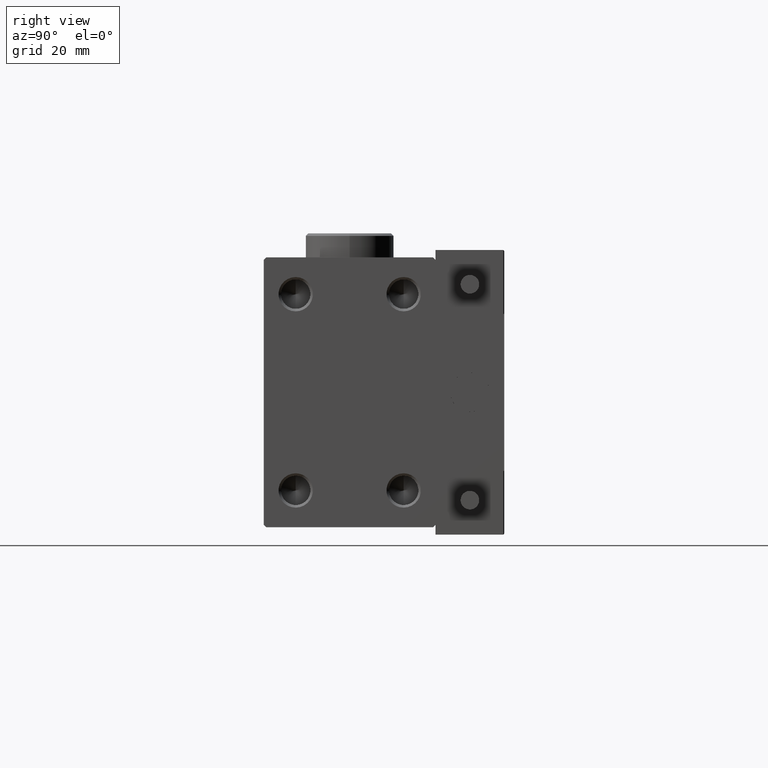
[diagram: clean part render]
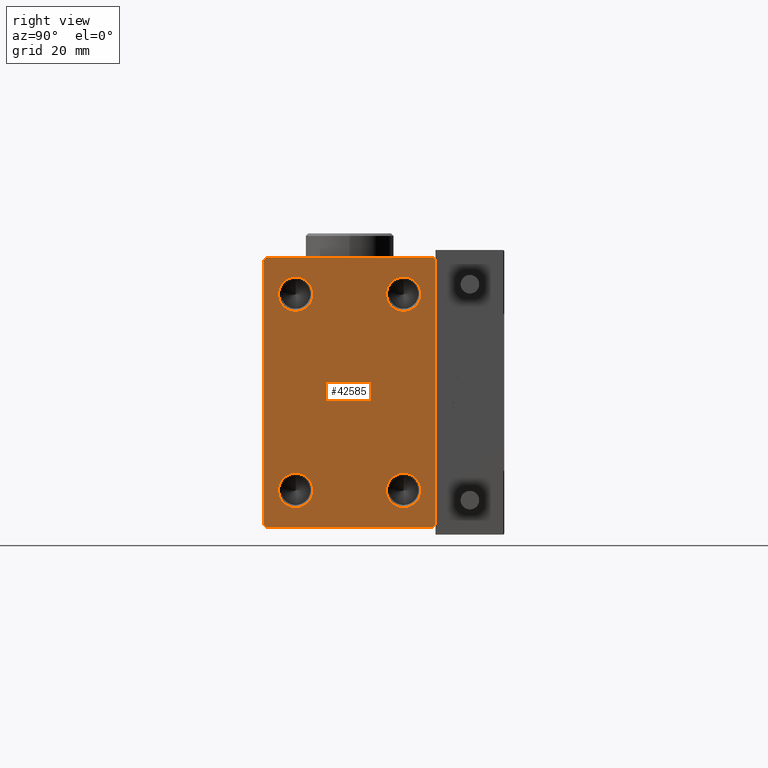
[diagram: same view with one face highlighted and labeled with its STEP entity id]
A machine part, right view. The second image highlights one B-rep face of the part: STEP entity #42585.
In plain terms, the highlighted planar face has unit normal (1, 0, 0).
Its self-contained STEP definition (entity closure, byte-faithful):
#493 = CARTESIAN_POINT ( 'NONE',  ( 56.00000000000000000, 11.00000000000000178, 20.00000000000000711 ) ) ;
#542 = DIRECTION ( 'NONE',  ( -0.000000000000000000, 0.7071067811865524577, 0.7071067811865426878 ) ) ;
#843 = VECTOR ( 'NONE', #542, 1000.000000000000000 ) ;
#857 = EDGE_LOOP ( 'NONE', ( #46517, #25351, #18844, #28887, #2879, #51760, #18659, #19606 ) ) ;
#969 = AXIS2_PLACEMENT_3D ( 'NONE', #21131, #49796, #41224 ) ;
#1532 = LINE ( 'NONE', #33703, #8540 ) ;
#1933 = FACE_BOUND ( 'NONE', #43088, .T. ) ;
#2503 = EDGE_CURVE ( 'NONE', #17040, #51691, #1532, .T. ) ;
#2879 = ORIENTED_EDGE ( 'NONE', *, *, #42895, .T. ) ;
#4167 = DIRECTION ( 'NONE',  ( 1.000000000000000000, -0.000000000000000000, -0.000000000000000000 ) ) ;
#4384 = CIRCLE ( 'NONE', #11256, 3.500000000000003109 ) ;
#5155 = FACE_OUTER_BOUND ( 'NONE', #857, .T. ) ;
#5355 = CARTESIAN_POINT ( 'NONE',  ( 56.00000000000000000, -17.49999999999999645, -26.99999999999998579 ) ) ;
#5575 = DIRECTION ( 'NONE',  ( -0.000000000000000000, 0.7071067811865474617, -0.7071067811865474617 ) ) ;
#5751 = CARTESIAN_POINT ( 'NONE',  ( 56.00000000000000000, -11.00000000000000533, 23.50000000000000711 ) ) ;
#5808 = EDGE_CURVE ( 'NONE', #31350, #25490, #18943, .T. ) ;
#5861 = CARTESIAN_POINT ( 'NONE',  ( 56.00000000000000000, -11.00000000000000533, -20.00000000000000000 ) ) ;
#5873 = EDGE_CURVE ( 'NONE', #9154, #48171, #17909, .T. ) ;
#5924 = CARTESIAN_POINT ( 'NONE',  ( 56.00000000000000000, -11.00000000000000533, 16.50000000000000711 ) ) ;
#6060 = ORIENTED_EDGE ( 'NONE', *, *, #6114, .F. ) ;
#6114 = EDGE_CURVE ( 'NONE', #30161, #46605, #22349, .T. ) ;
#6137 = DIRECTION ( 'NONE',  ( 0.000000000000000000, -1.261617073437677752E-16, 1.000000000000000000 ) ) ;
#6716 = EDGE_LOOP ( 'NONE', ( #7562, #16915 ) ) ;
#6751 = EDGE_CURVE ( 'NONE', #48668, #46515, #4384, .T. ) ;
#6907 = ORIENTED_EDGE ( 'NONE', *, *, #22789, .F. ) ;
#7029 = CIRCLE ( 'NONE', #34387, 3.500000000000003109 ) ;
#7056 = VECTOR ( 'NONE', #6137, 1000.000000000000000 ) ;
#7345 = EDGE_CURVE ( 'NONE', #46515, #48668, #7029, .T. ) ;
#7562 = ORIENTED_EDGE ( 'NONE', *, *, #12820, .F. ) ;
#7964 = VERTEX_POINT ( 'NONE', #5924 ) ;
#8066 = LINE ( 'NONE', #24653, #843 ) ;
#8540 = VECTOR ( 'NONE', #5575, 1000.000000000000114 ) ;
#8822 = DIRECTION ( 'NONE',  ( 1.000000000000000000, -0.000000000000000000, -0.000000000000000000 ) ) ;
#8869 = DIRECTION ( 'NONE',  ( 0.000000000000000000, 1.000000000000000000, -9.912705577010325549E-17 ) ) ;
#9154 = VERTEX_POINT ( 'NONE', #18891 ) ;
#9467 = FACE_BOUND ( 'NONE', #19483, .T. ) ;
#9891 = DIRECTION ( 'NONE',  ( 0.000000000000000000, -0.7071067811865474617, -0.7071067811865474617 ) ) ;
#9930 = EDGE_CURVE ( 'NONE', #18962, #9154, #52342, .T. ) ;
#11256 = AXIS2_PLACEMENT_3D ( 'NONE', #18045, #34371, #29821 ) ;
#12820 = EDGE_CURVE ( 'NONE', #25490, #31350, #41254, .T. ) ;
#12878 = CARTESIAN_POINT ( 'NONE',  ( 56.00000000000000000, -17.49999999999999645, -27.50000000000000711 ) ) ;
#13480 = FACE_BOUND ( 'NONE', #25762, .T. ) ;
#13729 = EDGE_CURVE ( 'NONE', #48994, #30366, #50597, .T. ) ;
#14134 = VECTOR ( 'NONE', #21176, 1000.000000000000000 ) ;
#14535 = PLANE ( 'NONE',  #16992 ) ;
#15342 = EDGE_CURVE ( 'NONE', #30366, #18962, #35333, .T. ) ;
#15394 = DIRECTION ( 'NONE',  ( 0.000000000000000000, -1.000000000000000000, -1.982541115402065356E-16 ) ) ;
#15587 = CARTESIAN_POINT ( 'NONE',  ( 56.00000000000000000, 17.50000000000000711, -27.00000000000000355 ) ) ;
#16842 = DIRECTION ( 'NONE',  ( 0.000000000000000000, 0.000000000000000000, -1.000000000000000000 ) ) ;
#16894 = CARTESIAN_POINT ( 'NONE',  ( 56.00000000000000000, -17.49999999999999645, 26.99999999999997868 ) ) ;
#16915 = ORIENTED_EDGE ( 'NONE', *, *, #5808, .F. ) ;
#16992 = AXIS2_PLACEMENT_3D ( 'NONE', #33824, #42401, #22044 ) ;
#17040 = VERTEX_POINT ( 'NONE', #5355 ) ;
#17704 = AXIS2_PLACEMENT_3D ( 'NONE', #45168, #4167, #20508 ) ;
#17909 = LINE ( 'NONE', #34244, #23225 ) ;
#18045 = CARTESIAN_POINT ( 'NONE',  ( 56.00000000000000000, 11.00000000000000178, 20.00000000000000711 ) ) ;
#18256 = VECTOR ( 'NONE', #32362, 1000.000000000000114 ) ;
#18659 = ORIENTED_EDGE ( 'NONE', *, *, #13729, .T. ) ;
#18759 = CIRCLE ( 'NONE', #46979, 3.500000000000003109 ) ;
#18844 = ORIENTED_EDGE ( 'NONE', *, *, #33994, .T. ) ;
#18891 = CARTESIAN_POINT ( 'NONE',  ( 56.00000000000000000, -16.99999999999998579, 27.49999999999998579 ) ) ;
#18943 = CIRCLE ( 'NONE', #969, 3.500000000000003109 ) ;
#18962 = VERTEX_POINT ( 'NONE', #33552 ) ;
#19483 = EDGE_LOOP ( 'NONE', ( #29020, #6907 ) ) ;
#19606 = ORIENTED_EDGE ( 'NONE', *, *, #15342, .T. ) ;
#20336 = AXIS2_PLACEMENT_3D ( 'NONE', #22296, #46674, #45880 ) ;
#20508 = DIRECTION ( 'NONE',  ( 0.000000000000000000, 0.000000000000000000, -1.000000000000000000 ) ) ;
#20562 = CARTESIAN_POINT ( 'NONE',  ( 56.00000000000000000, -16.99999999999997513, -27.50000000000000711 ) ) ;
#20636 = CARTESIAN_POINT ( 'NONE',  ( 56.00000000000000000, 11.00000000000000178, -16.50000000000000000 ) ) ;
#21131 = CARTESIAN_POINT ( 'NONE',  ( 56.00000000000000000, -11.00000000000000533, -20.00000000000000000 ) ) ;
#21176 = DIRECTION ( 'NONE',  ( 0.000000000000000000, 0.000000000000000000, -1.000000000000000000 ) ) ;
#21792 = DIRECTION ( 'NONE',  ( 0.000000000000000000, 0.000000000000000000, -1.000000000000000000 ) ) ;
#22044 = DIRECTION ( 'NONE',  ( 0.000000000000000000, 0.000000000000000000, -1.000000000000000000 ) ) ;
#22052 = DIRECTION ( 'NONE',  ( 1.000000000000000000, -0.000000000000000000, -0.000000000000000000 ) ) ;
#22296 = CARTESIAN_POINT ( 'NONE',  ( 56.00000000000000000, 11.00000000000000178, -20.00000000000000000 ) ) ;
#22349 = CIRCLE ( 'NONE', #47997, 3.500000000000003109 ) ;
#22789 = EDGE_CURVE ( 'NONE', #7964, #28429, #30505, .T. ) ;
#23225 = VECTOR ( 'NONE', #9891, 1000.000000000000114 ) ;
#23810 = CARTESIAN_POINT ( 'NONE',  ( 56.00000000000000000, 22.24999999999992895, 22.25000000000008171 ) ) ;
#23825 = CARTESIAN_POINT ( 'NONE',  ( 56.00000000000000000, 11.00000000000000178, -23.50000000000000000 ) ) ;
#23963 = ORIENTED_EDGE ( 'NONE', *, *, #41773, .F. ) ;
#24135 = LINE ( 'NONE', #12878, #43481 ) ;
#24653 = CARTESIAN_POINT ( 'NONE',  ( 56.00000000000000000, 22.24999999999988631, -22.25000000000019185 ) ) ;
#25351 = ORIENTED_EDGE ( 'NONE', *, *, #5873, .T. ) ;
#25490 = VERTEX_POINT ( 'NONE', #35908 ) ;
#25762 = EDGE_LOOP ( 'NONE', ( #23963, #6060 ) ) ;
#25798 = FACE_BOUND ( 'NONE', #6716, .T. ) ;
#26254 = CARTESIAN_POINT ( 'NONE',  ( 56.00000000000000000, -17.49999999999999645, 27.49999999999998579 ) ) ;
#26847 = DIRECTION ( 'NONE',  ( 1.000000000000000000, -0.000000000000000000, -0.000000000000000000 ) ) ;
#27096 = DIRECTION ( 'NONE',  ( 0.000000000000000000, 0.000000000000000000, -1.000000000000000000 ) ) ;
#28422 = CARTESIAN_POINT ( 'NONE',  ( 56.00000000000000000, -11.00000000000000533, -23.50000000000000000 ) ) ;
#28429 = VERTEX_POINT ( 'NONE', #5751 ) ;
#28887 = ORIENTED_EDGE ( 'NONE', *, *, #2503, .T. ) ;
#29020 = ORIENTED_EDGE ( 'NONE', *, *, #43539, .F. ) ;
#29156 = CARTESIAN_POINT ( 'NONE',  ( 56.00000000000000000, 17.50000000000000000, 26.99999999999998224 ) ) ;
#29622 = ORIENTED_EDGE ( 'NONE', *, *, #7345, .F. ) ;
#29821 = DIRECTION ( 'NONE',  ( 0.000000000000000000, 0.000000000000000000, -1.000000000000000000 ) ) ;
#30161 = VERTEX_POINT ( 'NONE', #23825 ) ;
#30347 = CARTESIAN_POINT ( 'NONE',  ( 56.00000000000000000, -11.00000000000000533, 20.00000000000000711 ) ) ;
#30366 = VERTEX_POINT ( 'NONE', #29156 ) ;
#30505 = CIRCLE ( 'NONE', #17704, 3.500000000000003109 ) ;
#31350 = VERTEX_POINT ( 'NONE', #28422 ) ;
#31986 = CARTESIAN_POINT ( 'NONE',  ( 56.00000000000000000, 17.50000000000000000, 27.49999999999999289 ) ) ;
#32346 = CIRCLE ( 'NONE', #20336, 3.500000000000003109 ) ;
#32362 = DIRECTION ( 'NONE',  ( -0.000000000000000000, -0.7071067811865500152, 0.7071067811865451302 ) ) ;
#33552 = CARTESIAN_POINT ( 'NONE',  ( 56.00000000000000000, 16.99999999999998579, 27.49999999999999289 ) ) ;
#33572 = AXIS2_PLACEMENT_3D ( 'NONE', #5861, #34247, #37733 ) ;
#33703 = CARTESIAN_POINT ( 'NONE',  ( 56.00000000000000000, -22.24999999999999289, -22.24999999999999289 ) ) ;
#33824 = CARTESIAN_POINT ( 'NONE',  ( 56.00000000000000000, 0.000000000000000000, 0.000000000000000000 ) ) ;
#33994 = EDGE_CURVE ( 'NONE', #48171, #17040, #46623, .T. ) ;
#34244 = CARTESIAN_POINT ( 'NONE',  ( 56.00000000000000000, -22.24999999999998579, 22.24999999999998579 ) ) ;
#34247 = DIRECTION ( 'NONE',  ( 1.000000000000000000, -0.000000000000000000, -0.000000000000000000 ) ) ;
#34371 = DIRECTION ( 'NONE',  ( 1.000000000000000000, -0.000000000000000000, -0.000000000000000000 ) ) ;
#34387 = AXIS2_PLACEMENT_3D ( 'NONE', #493, #8822, #16842 ) ;
#34743 = CARTESIAN_POINT ( 'NONE',  ( 56.00000000000000000, 16.99999999999999289, -27.50000000000001066 ) ) ;
#35333 = LINE ( 'NONE', #23810, #18256 ) ;
#35908 = CARTESIAN_POINT ( 'NONE',  ( 56.00000000000000000, -11.00000000000000533, -16.50000000000000000 ) ) ;
#37041 = VECTOR ( 'NONE', #15394, 1000.000000000000000 ) ;
#37733 = DIRECTION ( 'NONE',  ( 0.000000000000000000, 0.000000000000000000, -1.000000000000000000 ) ) ;
#38534 = CARTESIAN_POINT ( 'NONE',  ( 56.00000000000000000, 17.50000000000000711, -27.50000000000001066 ) ) ;
#38904 = CARTESIAN_POINT ( 'NONE',  ( 56.00000000000000000, 11.00000000000000178, 16.50000000000000711 ) ) ;
#41224 = DIRECTION ( 'NONE',  ( 0.000000000000000000, 0.000000000000000000, -1.000000000000000000 ) ) ;
#41254 = CIRCLE ( 'NONE', #33572, 3.500000000000003109 ) ;
#41773 = EDGE_CURVE ( 'NONE', #46605, #30161, #32346, .T. ) ;
#42401 = DIRECTION ( 'NONE',  ( 1.000000000000000000, 0.000000000000000000, 0.000000000000000000 ) ) ;
#42585 = ADVANCED_FACE ( 'NONE', ( #1933, #9467, #25798, #13480, #5155 ), #14535, .T. ) ;
#42895 = EDGE_CURVE ( 'NONE', #51691, #51814, #24135, .T. ) ;
#43088 = EDGE_LOOP ( 'NONE', ( #48097, #29622 ) ) ;
#43481 = VECTOR ( 'NONE', #8869, 1000.000000000000000 ) ;
#43539 = EDGE_CURVE ( 'NONE', #28429, #7964, #18759, .T. ) ;
#45168 = CARTESIAN_POINT ( 'NONE',  ( 56.00000000000000000, -11.00000000000000533, 20.00000000000000711 ) ) ;
#45880 = DIRECTION ( 'NONE',  ( 0.000000000000000000, 0.000000000000000000, -1.000000000000000000 ) ) ;
#46515 = VERTEX_POINT ( 'NONE', #38904 ) ;
#46517 = ORIENTED_EDGE ( 'NONE', *, *, #9930, .T. ) ;
#46605 = VERTEX_POINT ( 'NONE', #20636 ) ;
#46623 = LINE ( 'NONE', #26254, #14134 ) ;
#46674 = DIRECTION ( 'NONE',  ( 1.000000000000000000, -0.000000000000000000, -0.000000000000000000 ) ) ;
#46979 = AXIS2_PLACEMENT_3D ( 'NONE', #30347, #22052, #21792 ) ;
#47997 = AXIS2_PLACEMENT_3D ( 'NONE', #51480, #26847, #27096 ) ;
#48097 = ORIENTED_EDGE ( 'NONE', *, *, #6751, .F. ) ;
#48124 = EDGE_CURVE ( 'NONE', #51814, #48994, #8066, .T. ) ;
#48171 = VERTEX_POINT ( 'NONE', #16894 ) ;
#48668 = VERTEX_POINT ( 'NONE', #52846 ) ;
#48994 = VERTEX_POINT ( 'NONE', #15587 ) ;
#49796 = DIRECTION ( 'NONE',  ( 1.000000000000000000, -0.000000000000000000, -0.000000000000000000 ) ) ;
#50597 = LINE ( 'NONE', #38534, #7056 ) ;
#51480 = CARTESIAN_POINT ( 'NONE',  ( 56.00000000000000000, 11.00000000000000178, -20.00000000000000000 ) ) ;
#51691 = VERTEX_POINT ( 'NONE', #20562 ) ;
#51760 = ORIENTED_EDGE ( 'NONE', *, *, #48124, .T. ) ;
#51814 = VERTEX_POINT ( 'NONE', #34743 ) ;
#52342 = LINE ( 'NONE', #31986, #37041 ) ;
#52846 = CARTESIAN_POINT ( 'NONE',  ( 56.00000000000000000, 11.00000000000000178, 23.50000000000000711 ) ) ;